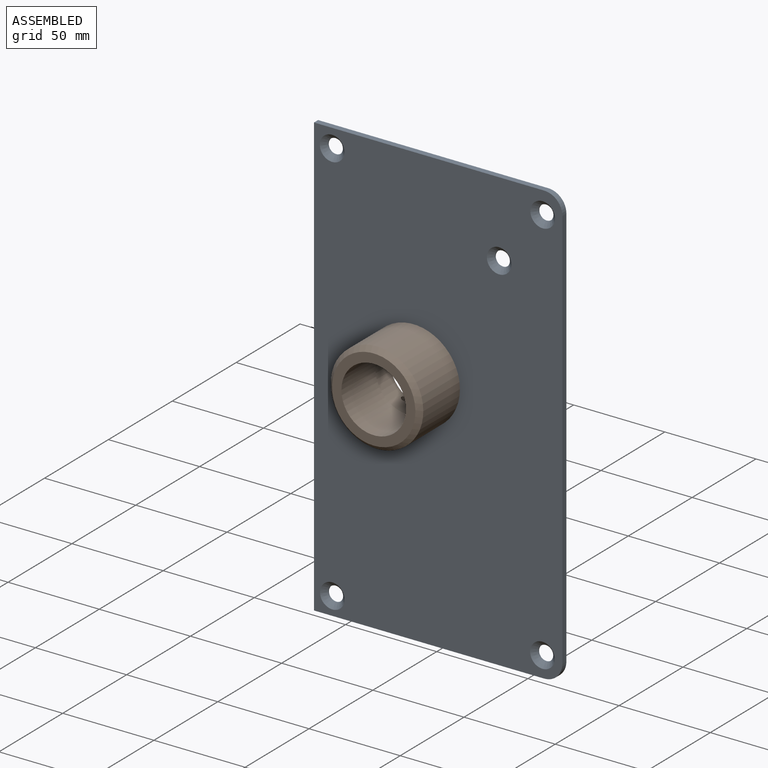
[diagram: assembled view]
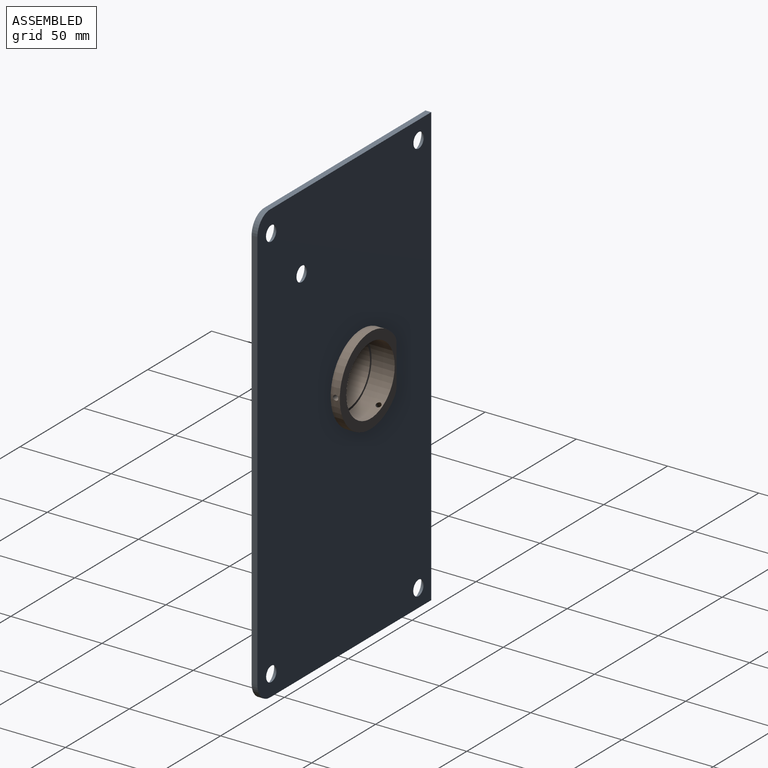
[diagram: assembled view, second angle]
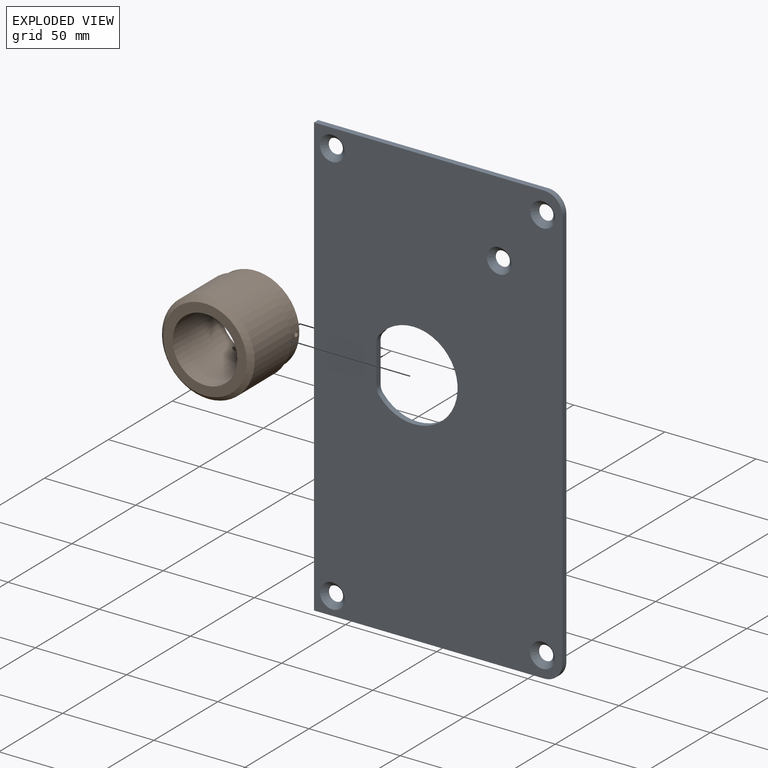
[diagram: exploded view]
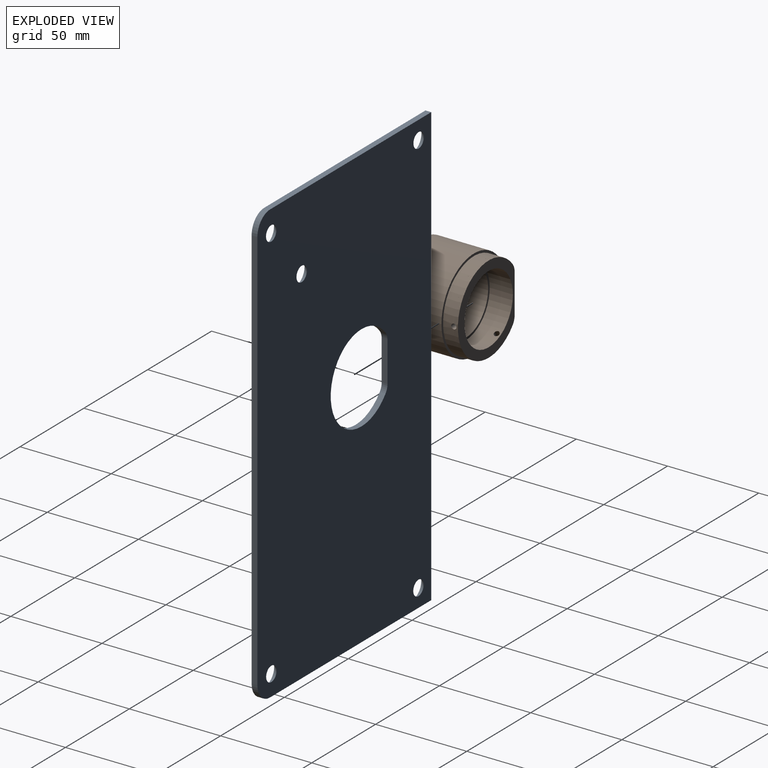
[diagram: exploded view, second angle]
ASSEMBLY  parts=2 mates=2
PART A: 22 faces, bbox 136.1x3.2x241.8 mm
  f0: plane 126.24x3.18mm, normal (0,0,-1), area 400.8mm2, adj f1,f5,f6,f7
  f1: cylinder r=9.91mm len=9.91mm, axis (0,1,0), area 49.4mm2, adj f0,f2,f6,f7
  f2: plane 222x3.18mm, normal (1,0,0), area 704.8mm2, adj f1,f3,f6,f7
  f3: cylinder r=9.91mm len=9.91mm, axis (0,1,0), area 49.4mm2, adj f2,f4,f6,f7
  f4: plane 126.24x3.18mm, normal (0,0,1), area 400.8mm2, adj f3,f5,f6,f7
  f5: plane 241.81x3.18mm, normal (-1,0,0), area 767.7mm2, adj f0,f4,f6,f7
  f6: plane 241.81x136.14mm, normal (0,-1,0), area 30405.9mm2, adj f0,f1,f2,f3,f4,f5,f9,f11
  f7: plane 241.81x136.14mm, normal (0,1,0), area 30858.1mm2, adj f0,f1,f2,f3,f4,f5,f8,f10
  f8: cylinder r=4.06mm len=8.13mm, axis (0,-1,0), area 13mm2, adj f7,f9
  f9: cone r=4.06mm half-angle=45deg, axis (0,-1,0), area 127.9mm2, adj f6,f8
  f10: cylinder r=4.06mm len=8.13mm, axis (0,-1,0), area 13mm2, adj f7,f11
  f11: cone r=4.06mm half-angle=45deg, axis (0,-1,0), area 127.9mm2, adj f6,f10
  f12: cylinder r=4.06mm len=8.13mm, axis (0,-1,0), area 13mm2, adj f7,f13
  f13: cone r=4.06mm half-angle=45deg, axis (0,-1,0), area 127.9mm2, adj f6,f12
  f14: cylinder r=4.06mm len=8.13mm, axis (0,-1,0), area 13mm2, adj f7,f15
  f15: cone r=4.06mm half-angle=45deg, axis (0,-1,0), area 127.9mm2, adj f6,f14
  f16: cylinder r=4.06mm len=8.13mm, axis (0,-1,0), area 13mm2, adj f7,f17
  f17: cone r=4.06mm half-angle=45deg, axis (0,-1,0), area 127.9mm2, adj f6,f16
  f18: cylinder r=6.6mm len=4.11mm, axis (0,-1,0), area 14.1mm2, adj f6,f7,f19,f21
  f19: cylinder r=24.13mm len=48.26mm, axis (0,-1,0), area 378.4mm2, adj f6,f7,f18,f20
  f20: cylinder r=6.6mm len=4.11mm, axis (0,-1,0), area 14.1mm2, adj f6,f7,f19,f21
  f21: plane 21.82x3.18mm, normal (1,0,0), area 69.3mm2, adj f6,f7,f18,f20
PART B: 20 faces, bbox 50.8x39.4x50.8 mm
  f0: cylinder r=24.13mm len=48.26mm, axis (0,-1,0), area 688.2mm2, adj f1,f2,f4,f5,f6,f10,f16,f17
  f1: cylinder r=7.37mm len=8.13mm, axis (0,-1,0), area 40.8mm2, adj f0,f3,f10,f11,f15,f17
  f2: cylinder r=7.37mm len=8.13mm, axis (0,-1,0), area 40.8mm2, adj f0,f3,f10,f11,f15,f19
  f3: plane 48.26x44.45mm, normal (0,1,0), area 635.6mm2, adj f1,f2,f11,f13,f15
  f4: cylinder r=1.44mm len=5.26mm, axis (-1,0,0), area 47mm2, adj f0,f13,f15,f16,f18
  f5: cylinder r=1.44mm len=5.99mm, axis (0.5,0,-0.87), area 47mm2, adj f0,f13,f15,f16,f17
  f6: cylinder r=1.44mm len=5.99mm, axis (0.5,0,0.87), area 47mm2, adj f0,f13,f15,f18,f19
  f7: cylinder r=17.72mm len=35.43mm, axis (0,-1,0), area 2968.8mm2, adj f9,f12
  f8: cylinder r=25.4mm len=50.8mm, axis (0,1,0), area 4580.6mm2, adj f10,f14
  f9: plane 45.72x45.72mm, normal (0,-1,0), area 655.7mm2, adj f7,f14
  f10: plane 50.8x50.8mm, normal (0,1,0), area 266.1mm2, adj f0,f1,f2,f8,f11
  f11: plane 21.28x8.13mm, normal (-1,0,0), area 173mm2, adj f1,f2,f3,f10
  f12: plane 37.85x37.85mm, normal (0,1,0), area 138.9mm2, adj f7,f13
  f13: cylinder r=18.92mm len=37.85mm, axis (0,1,0), area 1490.7mm2, adj f3,f4,f5,f6,f12
  f14: cone r=22.86mm half-angle=45deg, axis (0,1,0), area 544.6mm2, adj f8,f9
  f15: cylinder r=24.13mm len=48.26mm, axis (0,1,0), area 255.6mm2, adj f1,f2,f3,f4,f5,f6,f16,f17
  f16: plane 34.89x22.7mm, normal (0,1,0), area 0.1mm2, adj f0,f4,f5,f15
  f17: plane 5.46x4.95mm, normal (0,1,0), area 0mm2, adj f0,f1,f5,f15
  f18: plane 34.89x22.7mm, normal (0,1,0), area 0.1mm2, adj f0,f4,f6,f15
  f19: plane 5.46x4.95mm, normal (0,1,0), area 0mm2, adj f0,f2,f6,f15
PLACE A at identity fixed
PLACE B at identity
MATE planar B.f11 <-> A.f21  axis (-1,0,0) through (-30.74,0.89,-1.26)mm
MATE cylindrical B.f0 <-> A.f19  axis (0,-1,0) through (-10.42,-3.17,-1.26)mm
